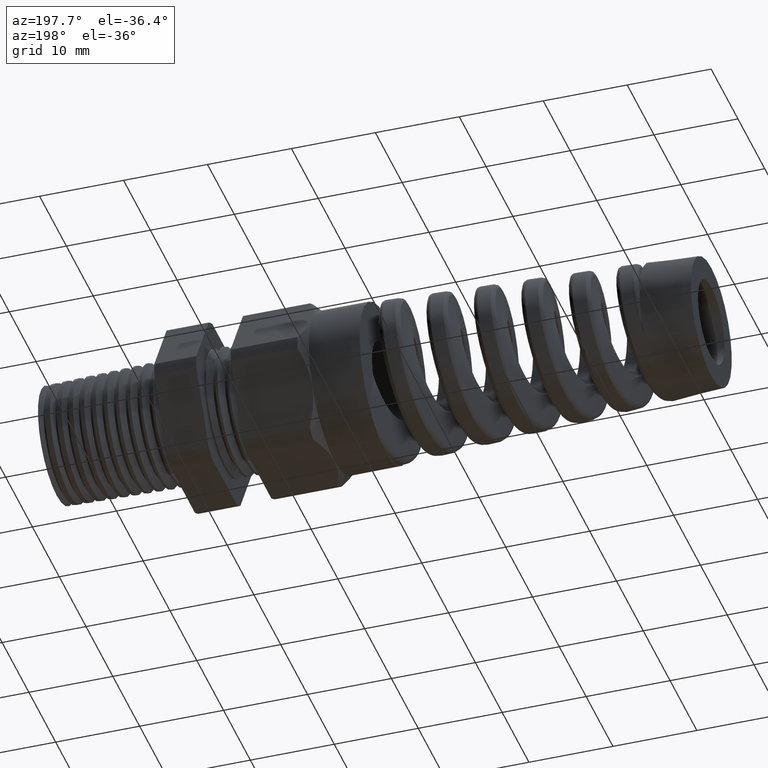
[diagram: clean part render]
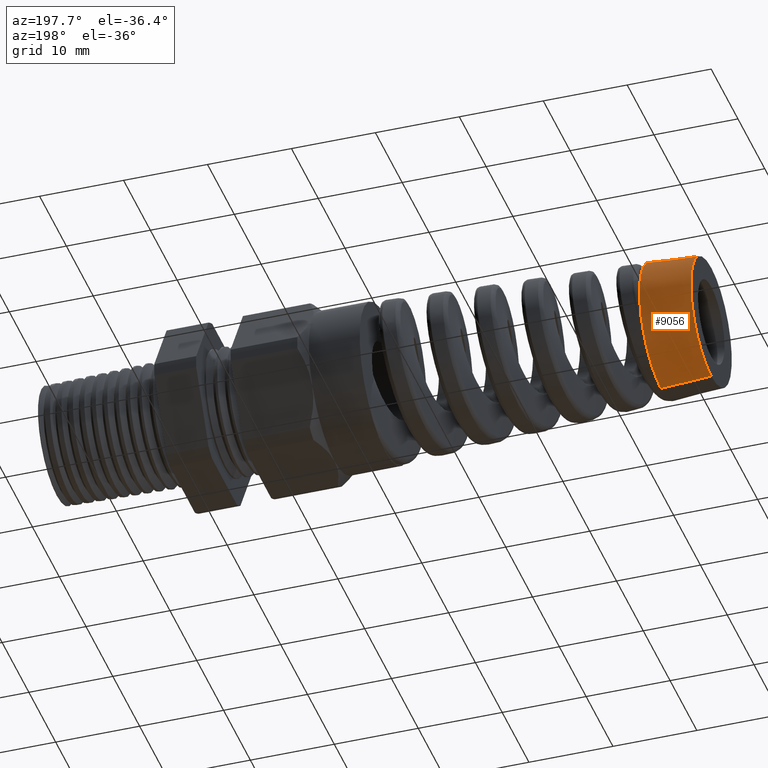
[diagram: same view with one face highlighted and labeled with its STEP entity id]
A machine part, auxiliary view. The second image highlights one B-rep face of the part: STEP entity #9056.
In plain terms, the highlighted conical surface has half-angle 3.5 deg.
Its self-contained STEP definition (entity closure, byte-faithful):
#1205 = EDGE_CURVE ( 'NONE', #6699, #3371, #11504, .T. ) ;
#1207 = VERTEX_POINT ( 'NONE', #11496 ) ;
#3306 = VERTEX_POINT ( 'NONE', #6965 ) ;
#3371 = VERTEX_POINT ( 'NONE', #7523 ) ;
#3373 = EDGE_CURVE ( 'NONE', #3371, #3306, #7521, .T. ) ;
#6678 = VERTEX_POINT ( 'NONE', #9439 ) ;
#6699 = VERTEX_POINT ( 'NONE', #9438 ) ;
#6786 = EDGE_CURVE ( 'NONE', #6678, #1207, #9699, .T. ) ;
#6965 = CARTESIAN_POINT ( 'NONE',  ( -2.553780000000000200, 0.2519907787363806500, -0.1890447402524815000 ) ) ;
#7517 = DIRECTION ( 'NONE',  ( 0.0000000000000000000, 0.0000000000000000000, -1.000000000000000000 ) ) ;
#7518 = DIRECTION ( 'NONE',  ( 1.000000000000000000, 0.0000000000000000000, 0.0000000000000000000 ) ) ;
#7519 = CARTESIAN_POINT ( 'NONE',  ( -2.553780000000000200, 0.0000000000000000000, 0.0000000000000000000 ) ) ;
#7520 = AXIS2_PLACEMENT_3D ( 'NONE', #7519, #7518, #7517 ) ;
#7521 = CIRCLE ( 'NONE', #7520, 0.3150194698511439300 ) ;
#7523 = CARTESIAN_POINT ( 'NONE',  ( -2.553780000000000200, -3.857875854222981300E-017, -0.3150194698511427600 ) ) ;
#9023 = EDGE_CURVE ( 'NONE', #6678, #6699, #9895, .T. ) ;
#9036 = EDGE_LOOP ( 'NONE', ( #9042, #9038, #9044, #9040, #9039 ) ) ;
#9038 = ORIENTED_EDGE ( 'NONE', *, *, #9023, .F. ) ;
#9039 = ORIENTED_EDGE ( 'NONE', *, *, #3373, .F. ) ;
#9040 = ORIENTED_EDGE ( 'NONE', *, *, #9043, .T. ) ;
#9042 = ORIENTED_EDGE ( 'NONE', *, *, #1205, .F. ) ;
#9043 = EDGE_CURVE ( 'NONE', #1207, #3306, #9927, .T. ) ;
#9044 = ORIENTED_EDGE ( 'NONE', *, *, #6786, .T. ) ;
#9056 = ADVANCED_FACE ( 'NONE', ( #9944 ), #9943, .T. ) ;
#9438 = CARTESIAN_POINT ( 'NONE',  ( -2.790000472440945100, -3.769408208166182400E-017, -0.3005716068234692800 ) ) ;
#9439 = CARTESIAN_POINT ( 'NONE',  ( -2.790000472440945100, 0.0000000000000000000, 0.3005716068234692800 ) ) ;
#9696 = DIRECTION ( 'NONE',  ( 0.9981347984218669200, 0.0000000000000000000, 0.06104853953485701200 ) ) ;
#9697 = VECTOR ( 'NONE', #9696, 39.37007874015748900 ) ;
#9698 = CARTESIAN_POINT ( 'NONE',  ( -2.553780000000000200, 0.0000000000000000000, 0.3150194698511427600 ) ) ;
#9699 = LINE ( 'NONE', #9698, #9697 ) ;
#9892 = DIRECTION ( 'NONE',  ( 0.0000000000000000000, 0.0000000000000000000, 1.000000000000000000 ) ) ;
#9893 = DIRECTION ( 'NONE',  ( -1.000000000000000000, 0.0000000000000000000, 0.0000000000000000000 ) ) ;
#9894 = AXIS2_PLACEMENT_3D ( 'NONE', #9904, #9893, #9892 ) ;
#9895 = CIRCLE ( 'NONE', #9894, 0.3005716068234692800 ) ;
#9904 = CARTESIAN_POINT ( 'NONE',  ( -2.790000472440945100, 0.0000000000000000000, 0.0000000000000000000 ) ) ;
#9924 = DIRECTION ( 'NONE',  ( 0.0000000000000000000, 0.0000000000000000000, 1.000000000000000000 ) ) ;
#9925 = DIRECTION ( 'NONE',  ( -1.000000000000000000, 0.0000000000000000000, 0.0000000000000000000 ) ) ;
#9926 = AXIS2_PLACEMENT_3D ( 'NONE', #9933, #9925, #9924 ) ;
#9927 = CIRCLE ( 'NONE', #9926, 0.3150194698511427600 ) ;
#9933 = CARTESIAN_POINT ( 'NONE',  ( -2.553780000000000200, 0.0000000000000000000, 0.0000000000000000000 ) ) ;
#9938 = DIRECTION ( 'NONE',  ( 0.0000000000000000000, 0.0000000000000000000, 1.000000000000000000 ) ) ;
#9939 = DIRECTION ( 'NONE',  ( 1.000000000000000000, 0.0000000000000000000, 0.0000000000000000000 ) ) ;
#9940 = CARTESIAN_POINT ( 'NONE',  ( -2.553780000000000200, 0.0000000000000000000, 0.0000000000000000000 ) ) ;
#9941 = AXIS2_PLACEMENT_3D ( 'NONE', #9940, #9939, #9938 ) ;
#9943 = CONICAL_SURFACE ( 'NONE', #9941, 0.3150194698511427600, 0.06108652381980166800 ) ;
#9944 = FACE_OUTER_BOUND ( 'NONE', #9036, .T. ) ;
#11496 = CARTESIAN_POINT ( 'NONE',  ( -2.553780000000000200, 0.0000000000000000000, 0.3150194698511427600 ) ) ;
#11501 = DIRECTION ( 'NONE',  ( 0.9981347984218669200, -7.476289853398327700E-018, -0.06104853953485701200 ) ) ;
#11502 = VECTOR ( 'NONE', #11501, 39.37007874015748900 ) ;
#11503 = CARTESIAN_POINT ( 'NONE',  ( -2.553780000000000200, -3.857875854222981300E-017, -0.3150194698511427600 ) ) ;
#11504 = LINE ( 'NONE', #11503, #11502 ) ;